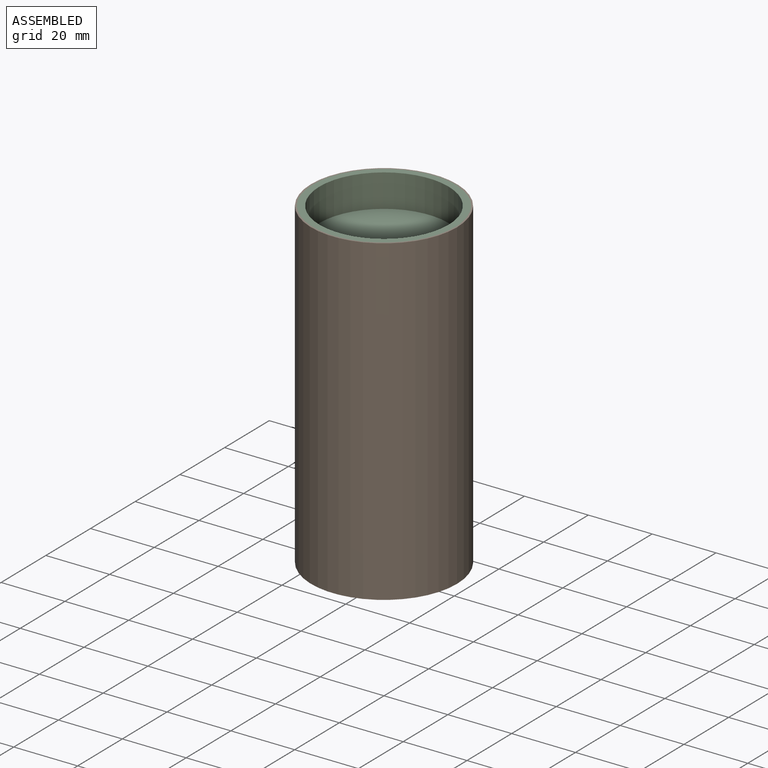
[diagram: assembled view]
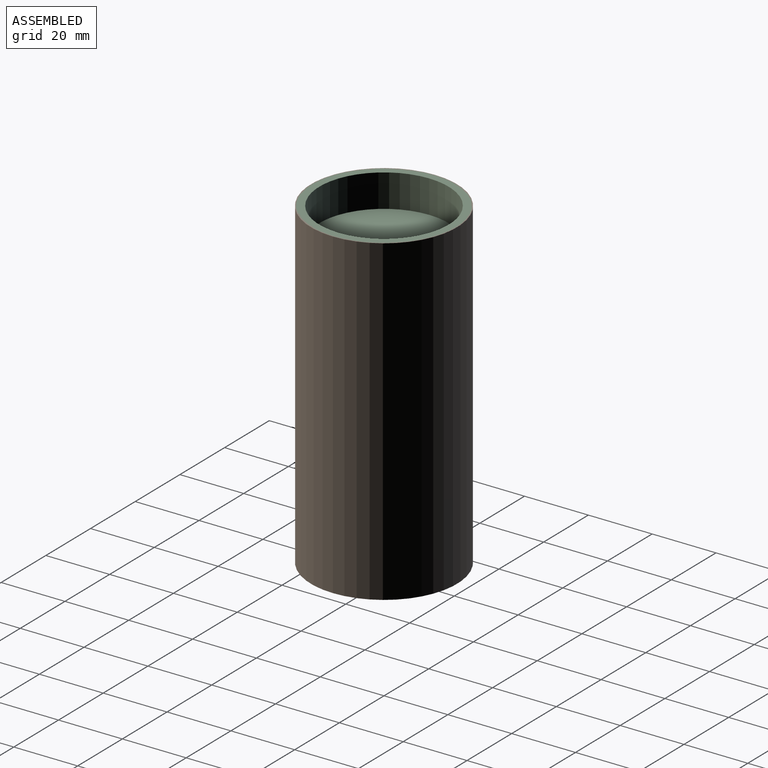
[diagram: assembled view, second angle]
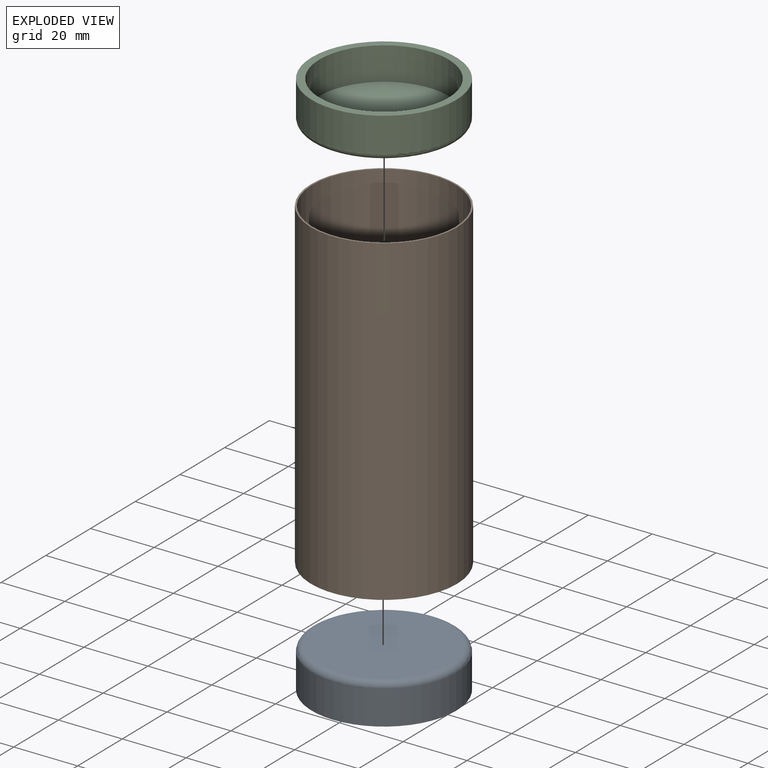
[diagram: exploded view]
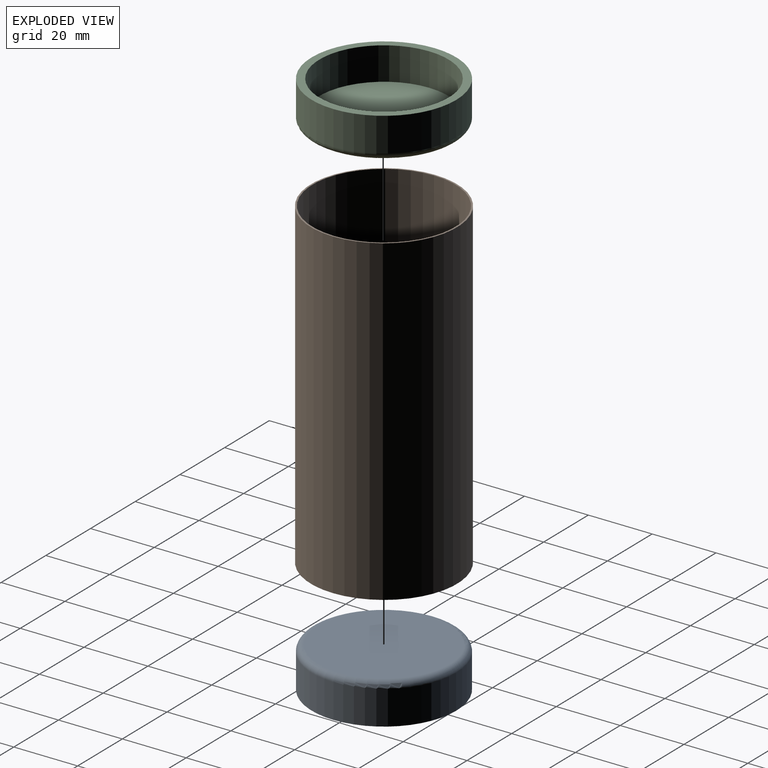
[diagram: exploded view, second angle]
ASSEMBLY  parts=3 mates=2
PART A: 6 faces, bbox 49x49x12.7 mm
  f0: cylinder r=22.62mm len=45.24mm, axis (0,0,-1), area 1523.1mm2, adj f1,f3
  f1: plane 45.24x45.24mm, normal (0,0,1), area 320.7mm2, adj f0,f4
  f2: plane 41.28x41.28mm, normal (0,0,-1), area 1338mm2, adj f3
  f3: torus R=20.64mm, axis (0,0,1), area 428.9mm2, adj f0,f2
  f4: cylinder r=20.24mm len=40.48mm, axis (0,0,-1), area 1312.3mm2, adj f1,f5
  f5: plane 40.48x40.48mm, normal (0,0,1), area 1287.1mm2, adj f4
PART B: 4 faces, bbox 45.7x45.7x101 mm
  f0: cylinder r=22.39mm len=101mm, axis (0,0,-1), area 14209.5mm2, adj f2,f3
  f1: cylinder r=22.87mm len=101mm, axis (0,0,-1), area 14515.7mm2, adj f2,f3
  f2: plane 45.75x45.75mm, normal (0,0,1), area 68.6mm2, adj f0,f1
  f3: plane 45.75x45.75mm, normal (0,0,-1), area 68.6mm2, adj f0,f1
PART C: same geometry as A
PLACE A rot(axis=(0,1,0),180deg) t=(0,0,12.7)mm
PLACE B at identity
PLACE C t=(0,0,88.3)mm
MATE fastened C.f0 <-> B.f0  axis (0,0,-1) through (0,0,101)mm
MATE fastened A.f0 <-> B.f0  axis (0,0,1) through (0,0,0)mm
